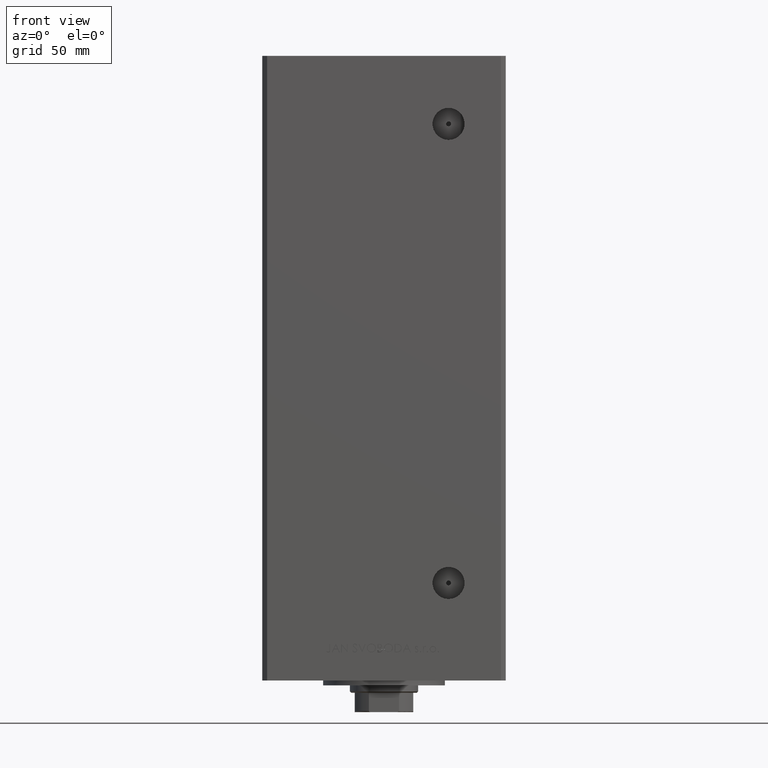
[diagram: clean part render]
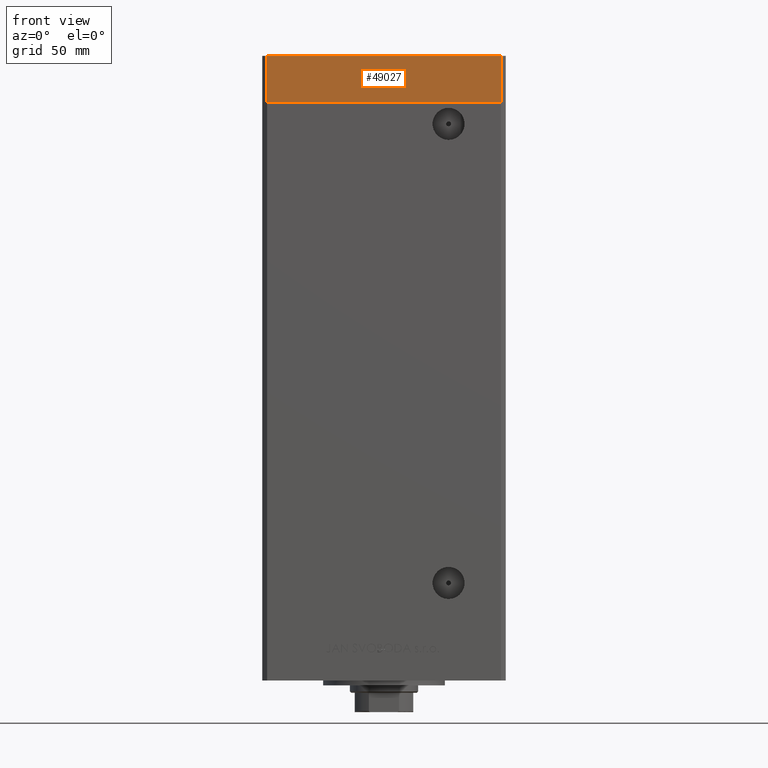
[diagram: same view with one face highlighted and labeled with its STEP entity id]
A machine part, front view. The second image highlights one B-rep face of the part: STEP entity #49027.
In plain terms, the highlighted planar face has unit normal (0, -1, 0).
Its self-contained STEP definition (entity closure, byte-faithful):
#538 = VECTOR ( 'NONE', #34347, 1000.000000000000000 ) ;
#2574 = VECTOR ( 'NONE', #14525, 1000.000000000000000 ) ;
#2788 = AXIS2_PLACEMENT_3D ( 'NONE', #8256, #23723, #49836 ) ;
#3100 = DIRECTION ( 'NONE',  ( 1.000000000000000000, 0.000000000000000000, 0.000000000000000000 ) ) ;
#8256 = CARTESIAN_POINT ( 'NONE',  ( -47.99999999999999289, -43.50000000000001421, -19.00000000000000000 ) ) ;
#9953 = VERTEX_POINT ( 'NONE', #14499 ) ;
#11449 = DIRECTION ( 'NONE',  ( 1.000000000000000000, 0.000000000000000000, 0.000000000000000000 ) ) ;
#13779 = LINE ( 'NONE', #49484, #2574 ) ;
#14499 = CARTESIAN_POINT ( 'NONE',  ( -47.99999999999999289, -43.50000000000001421, 0.000000000000000000 ) ) ;
#14525 = DIRECTION ( 'NONE',  ( 0.000000000000000000, 0.000000000000000000, 1.000000000000000000 ) ) ;
#18816 = EDGE_CURVE ( 'NONE', #44219, #38680, #13779, .T. ) ;
#20016 = CARTESIAN_POINT ( 'NONE',  ( 47.99999999999999289, -43.50000000000001421, 0.000000000000000000 ) ) ;
#23360 = CARTESIAN_POINT ( 'NONE',  ( -47.99999999999999289, -43.50000000000001421, 0.000000000000000000 ) ) ;
#23723 = DIRECTION ( 'NONE',  ( 0.000000000000000000, -1.000000000000000000, 0.000000000000000000 ) ) ;
#26277 = EDGE_CURVE ( 'NONE', #9953, #38680, #27907, .T. ) ;
#27526 = FACE_OUTER_BOUND ( 'NONE', #43786, .T. ) ;
#27907 = LINE ( 'NONE', #23360, #31603 ) ;
#29460 = EDGE_CURVE ( 'NONE', #34275, #44219, #45674, .T. ) ;
#31186 = ORIENTED_EDGE ( 'NONE', *, *, #26277, .F. ) ;
#31603 = VECTOR ( 'NONE', #11449, 1000.000000000000000 ) ;
#31969 = CARTESIAN_POINT ( 'NONE',  ( -47.99999999999999289, -43.50000000000001421, -19.00000000000000000 ) ) ;
#34275 = VERTEX_POINT ( 'NONE', #31969 ) ;
#34347 = DIRECTION ( 'NONE',  ( 0.000000000000000000, 0.000000000000000000, 1.000000000000000000 ) ) ;
#37174 = ORIENTED_EDGE ( 'NONE', *, *, #29460, .T. ) ;
#37826 = CARTESIAN_POINT ( 'NONE',  ( -47.99999999999999289, -43.50000000000001421, -19.00000000000000000 ) ) ;
#38598 = CARTESIAN_POINT ( 'NONE',  ( 47.99999999999999289, -43.50000000000001421, -19.00000000000000000 ) ) ;
#38680 = VERTEX_POINT ( 'NONE', #20016 ) ;
#42205 = CARTESIAN_POINT ( 'NONE',  ( -47.99999999999999289, -43.50000000000001421, -19.00000000000000000 ) ) ;
#43000 = PLANE ( 'NONE',  #2788 ) ;
#43786 = EDGE_LOOP ( 'NONE', ( #31186, #45159, #37174, #47056 ) ) ;
#44219 = VERTEX_POINT ( 'NONE', #38598 ) ;
#45016 = LINE ( 'NONE', #42205, #538 ) ;
#45159 = ORIENTED_EDGE ( 'NONE', *, *, #45486, .F. ) ;
#45486 = EDGE_CURVE ( 'NONE', #34275, #9953, #45016, .T. ) ;
#45674 = LINE ( 'NONE', #37826, #49521 ) ;
#47056 = ORIENTED_EDGE ( 'NONE', *, *, #18816, .T. ) ;
#49027 = ADVANCED_FACE ( 'NONE', ( #27526 ), #43000, .T. ) ;
#49484 = CARTESIAN_POINT ( 'NONE',  ( 47.99999999999999289, -43.50000000000001421, -19.00000000000000000 ) ) ;
#49521 = VECTOR ( 'NONE', #3100, 1000.000000000000000 ) ;
#49836 = DIRECTION ( 'NONE',  ( 0.000000000000000000, -0.000000000000000000, -1.000000000000000000 ) ) ;